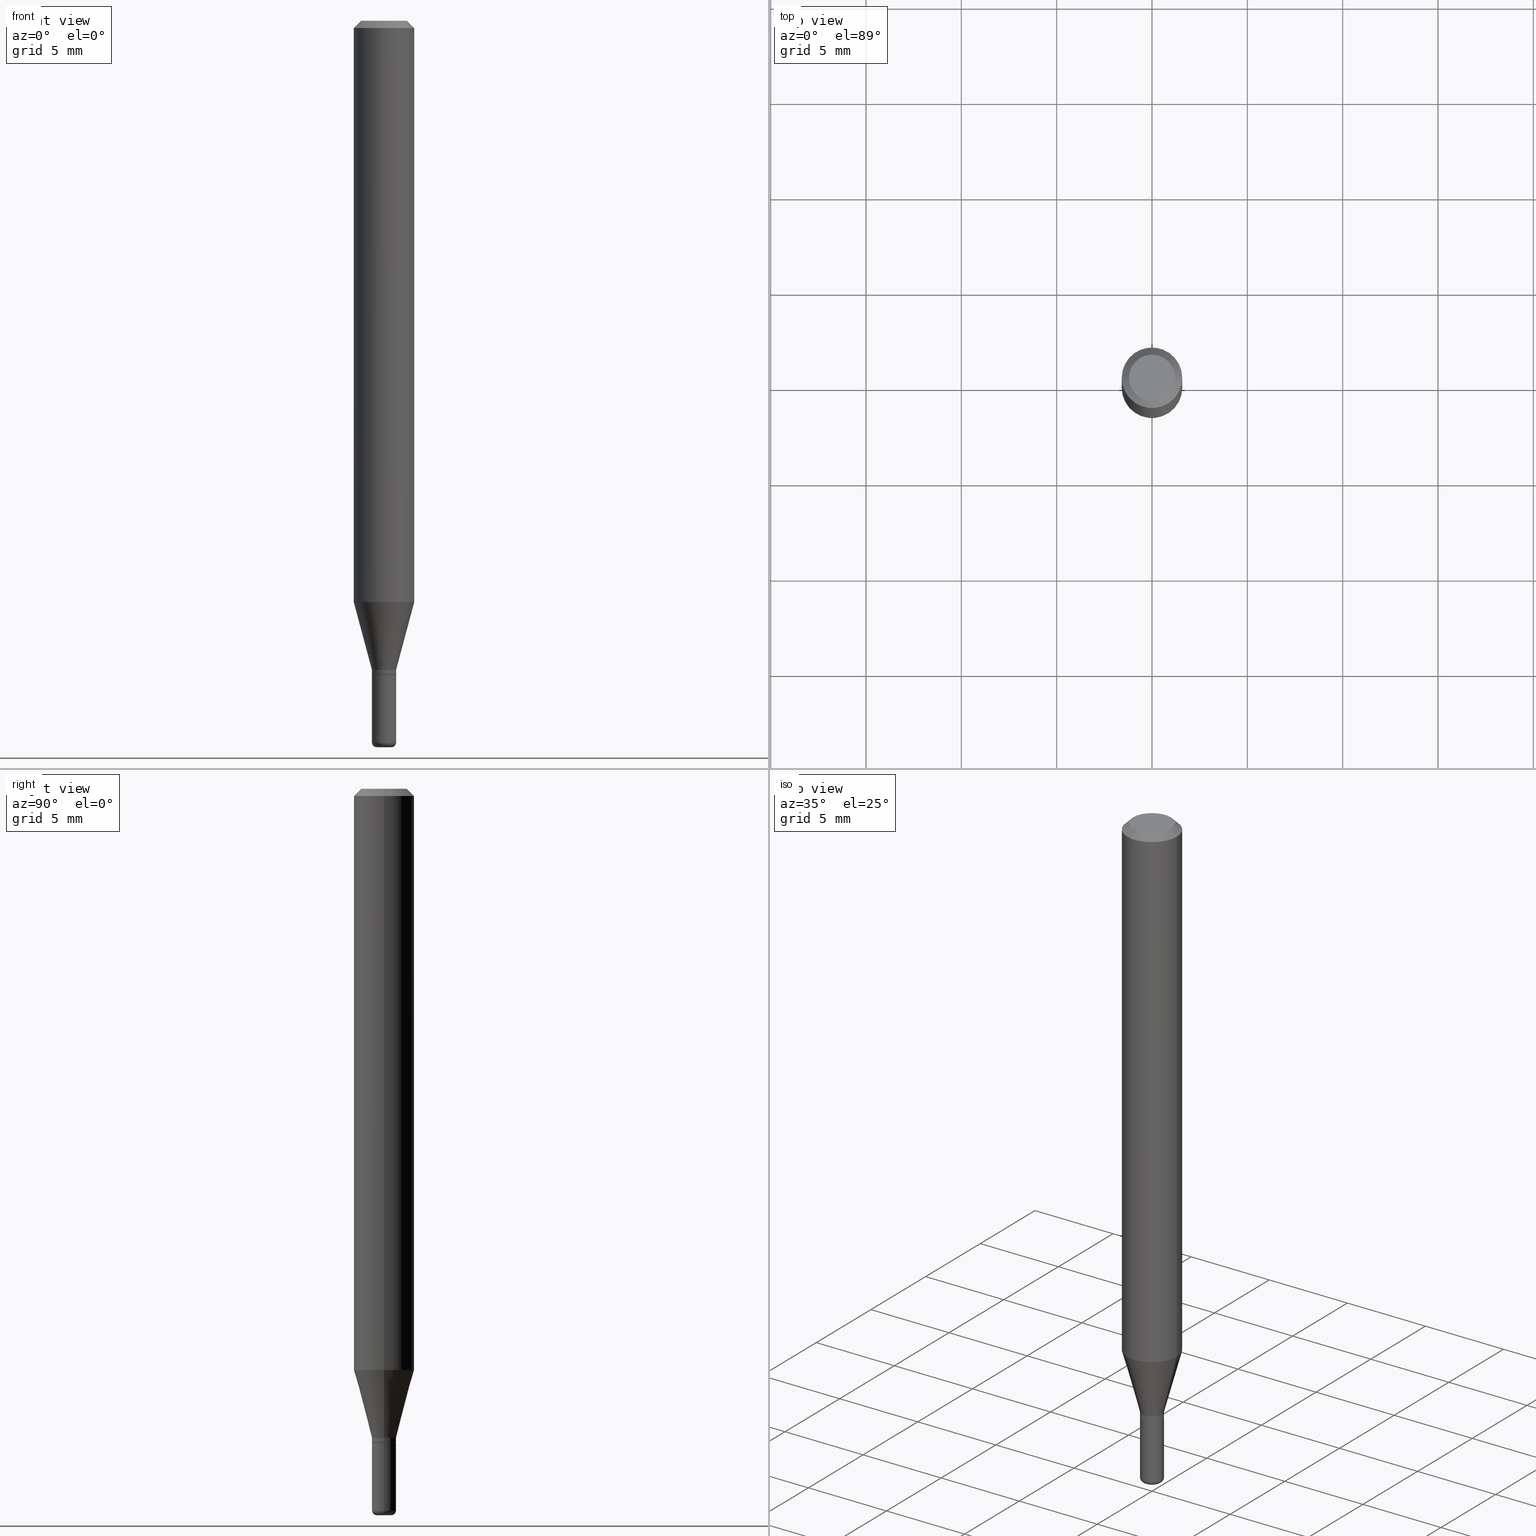
[diagram: canonical four-view strip — front | top / right | iso, engineering-drawing reading convention]
A machine part, canonical four-view strip (front | top / right | iso — engineering-drawing reading convention). The complete STEP part file that produces these views, byte-faithful:
ISO-10303-21;
HEADER;
FILE_DESCRIPTION (( 'STEP AP203' ),
    '1' );
FILE_NAME ('08665.STEP',
    '2024-02-29T20:15:08',
    ( '' ),
    ( '' ),
    'SwSTEP 2.0',
    'SolidWorks 2023',
    '' );
FILE_SCHEMA (( 'CONFIG_CONTROL_DESIGN' ));
ENDSEC;

DATA;
#1 = CALENDAR_DATE ( 2024, 29, 2 ) ;
#2 = ORIENTED_EDGE ( 'NONE', *, *, #65, .F. ) ;
#3 = EDGE_LOOP ( 'NONE', ( #370, #242, #313, #201 ) ) ;
#4 = APPLICATION_CONTEXT ( 'configuration controlled 3d designs of mechanical parts and assemblies' ) ;
#5 = AXIS2_PLACEMENT_3D ( 'NONE', #376, #502, #185 ) ;
#6 = ORGANIZATION ( 'UNSPECIFIED', 'UNSPECIFIED', '' ) ;
#7 = CONICAL_SURFACE ( 'NONE', #472, 0.02499999999999996322, 0.2617993877991492968 ) ;
#8 = EDGE_CURVE ( 'NONE', #393, #438, #296, .T. ) ;
#9 = VERTEX_POINT ( 'NONE', #403 ) ;
#10 = DIRECTION ( 'NONE',  ( 1.000000000000000000, -6.982962677686265922E-15, 0.000000000000000000 ) ) ;
#11 = DIRECTION ( 'NONE',  ( -2.445468806185136597E-29, 3.491481338843145583E-15, 1.000000000000000000 ) ) ;
#12 = ORIENTED_EDGE ( 'NONE', *, *, #480, .T. ) ;
#13 = CARTESIAN_POINT ( 'NONE',  ( 0.01500000000000000465, -5.341966448430012335E-15, -1.500000000000000222 ) ) ;
#14 = ORIENTED_EDGE ( 'NONE', *, *, #129, .T. ) ;
#15 = ADVANCED_FACE ( 'NONE', ( #446 ), #219, .T. ) ;
#16 = CARTESIAN_POINT ( 'NONE',  ( 3.582686580359766038E-29, -5.359686688179453325E-15, -1.500000000000000222 ) ) ;
#17 = ORIENTED_EDGE ( 'NONE', *, *, #295, .T. ) ;
#18 = CARTESIAN_POINT ( 'NONE',  ( -0.06250000000000000000, 3.840629472727455270E-16, -0.01499999999999970281 ) ) ;
#19 = EDGE_LOOP ( 'NONE', ( #249, #366 ) ) ;
#20 = CARTESIAN_POINT ( 'NONE',  ( 3.300160153946842277E-29, -4.711754066768825092E-15, -1.349500000000000144 ) ) ;
#21 = AXIS2_PLACEMENT_3D ( 'NONE', #420, #71, #230 ) ;
#22 = DIRECTION ( 'NONE',  ( 1.000000000000000000, -6.982962677686265922E-15, 4.876176775795935793E-29 ) ) ;
#23 =( GEOMETRIC_REPRESENTATION_CONTEXT ( 3 ) GLOBAL_UNCERTAINTY_ASSIGNED_CONTEXT ( ( #264 ) ) GLOBAL_UNIT_ASSIGNED_CONTEXT ( ( #30, #192, #422 ) ) REPRESENTATION_CONTEXT ( 'NONE', 'WORKASPACE' ) );
#24 = ADVANCED_FACE ( 'NONE', ( #490 ), #161, .T. ) ;
#25 = DIRECTION ( 'NONE',  ( 1.000000000000000000, -6.982962677686269866E-15, 4.883557194083113462E-29 ) ) ;
#26 = DIRECTION ( 'NONE',  ( 2.438088387897960049E-29, -3.491481338843145188E-15, -1.000000000000000000 ) ) ;
#27 = LENGTH_MEASURE_WITH_UNIT ( LENGTH_MEASURE( 0.02539999999999999897 ), #379 );
#28 = CARTESIAN_POINT ( 'NONE',  ( -0.06250000000000000000, 4.440892098500626162E-16, -3.074334431409316114E-30 ) ) ;
#29 = EDGE_LOOP ( 'NONE', ( #199, #96, #405, #46 ) ) ;
#30 =( CONVERSION_BASED_UNIT ( 'INCH', #27 ) LENGTH_UNIT ( ) NAMED_UNIT ( #190 ) );
#31 = CARTESIAN_POINT ( 'NONE',  ( 3.668203209277704895E-29, -5.237222008264718177E-15, -1.500000000000000222 ) ) ;
#32 = AXIS2_PLACEMENT_3D ( 'NONE', #445, #499, #252 ) ;
#33 = CARTESIAN_POINT ( 'NONE',  ( 0.02499999999999996322, -4.853159060991972403E-15, -1.340000000000000080 ) ) ;
#34 = PERSON_AND_ORGANIZATION ( #459, #6 ) ;
#35 = CARTESIAN_POINT ( 'NONE',  ( 0.02499999999999996322, -4.853159060991972403E-15, -1.340000000000000080 ) ) ;
#36 = APPROVAL_STATUS ( 'not_yet_approved' ) ;
#37 = VERTEX_POINT ( 'NONE', #332 ) ;
#38 = ORIENTED_EDGE ( 'NONE', *, *, #205, .T. ) ;
#39 = PERSON_AND_ORGANIZATION ( #459, #6 ) ;
#40 = AXIS2_PLACEMENT_3D ( 'NONE', #261, #74, #414 ) ;
#41 = CONICAL_SURFACE ( 'NONE', #103, 0.02449999999999996972, 0.7853981633975507526 ) ;
#42 = ORIENTED_EDGE ( 'NONE', *, *, #421, .T. ) ;
#43 = CARTESIAN_POINT ( 'NONE',  ( 0.000000000000000000, 0.000000000000000000, 0.000000000000000000 ) ) ;
#44 = EDGE_LOOP ( 'NONE', ( #153, #359, #42, #513 ) ) ;
#45 = EDGE_CURVE ( 'NONE', #243, #91, #486, .T. ) ;
#46 = ORIENTED_EDGE ( 'NONE', *, *, #391, .F. ) ;
#47 = CIRCLE ( 'NONE', #287, 0.06250000000000000000 ) ;
#48 = CLOSED_SHELL ( 'NONE', ( #372, #299, #220, #308, #427, #402 ) ) ;
#49 = COORDINATED_UNIVERSAL_TIME_OFFSET ( 5, 0, .BEHIND. ) ;
#50 = EDGE_LOOP ( 'NONE', ( #163, #128 ) ) ;
#51 = APPLICATION_CONTEXT ( 'configuration controlled 3d designs of mechanical parts and assemblies' ) ;
#52 = CARTESIAN_POINT ( 'NONE',  ( 0.02499999999999996669, -1.745740669421564459E-16, 1.219044193948982372E-30 ) ) ;
#53 = CARTESIAN_POINT ( 'NONE',  ( 0.02499999999999997363, -4.886328133710982549E-15, -1.349500000000000144 ) ) ;
#54 = DIRECTION ( 'NONE',  ( 1.000000000000000000, -6.982962677686265922E-15, 4.876176775795935793E-29 ) ) ;
#55 = DIRECTION ( 'NONE',  ( 1.000000000000000000, -6.982962677686267499E-15, 4.876176775795935793E-29 ) ) ;
#56 = ADVANCED_FACE ( 'NONE', ( #324 ), #506, .T. ) ;
#57 = LINE ( 'NONE', #52, #236 ) ;
#58 = CIRCLE ( 'NONE', #342, 0.02500000000000000139 ) ;
#59 = CC_DESIGN_APPROVAL ( #83, ( #172 ) ) ;
#60 = VERTEX_POINT ( 'NONE', #53 ) ;
#61 = AXIS2_PLACEMENT_3D ( 'NONE', #244, #285, #55 ) ;
#62 = CARTESIAN_POINT ( 'NONE',  ( -0.02499999999999994588, -4.780267817217242146E-15, -1.490000000000000213 ) ) ;
#63 = VERTEX_POINT ( 'NONE', #293 ) ;
#64 = FACE_OUTER_BOUND ( 'NONE', #191, .T. ) ;
#65 = EDGE_CURVE ( 'NONE', #361, #352, #247, .T. ) ;
#66 = DIRECTION ( 'NONE',  ( -2.445468806185136877E-29, 3.491481338843145188E-15, 1.000000000000000000 ) ) ;
#67 = DIRECTION ( 'NONE',  ( 1.000000000000000000, -6.982962677686282488E-15, 0.000000000000000000 ) ) ;
#68 = VECTOR ( 'NONE', #66, 39.37007874015748143 ) ;
#69 = DIRECTION ( 'NONE',  ( -1.000000000000000000, 7.105427357600964782E-15, 0.000000000000000000 ) ) ;
#70 = DESIGN_CONTEXT ( 'detailed design', #4, 'design' ) ;
#71 = DIRECTION ( 'NONE',  ( -2.445468806185136597E-29, 3.491481338843145583E-15, 1.000000000000000000 ) ) ;
#72 = CC_DESIGN_DATE_AND_TIME_ASSIGNMENT ( #387, #196, ( #79 ) ) ;
#73 = DIRECTION ( 'NONE',  ( -2.445468806185136597E-29, 3.491481338843145583E-15, 1.000000000000000000 ) ) ;
#74 = DIRECTION ( 'NONE',  ( -2.445468806185136597E-29, 3.491481338843145583E-15, 1.000000000000000000 ) ) ;
#75 = EDGE_CURVE ( 'NONE', #100, #434, #104, .T. ) ;
#76 = FACE_OUTER_BOUND ( 'NONE', #175, .T. ) ;
#77 = COORDINATED_UNIVERSAL_TIME_OFFSET ( 5, 0, .BEHIND. ) ;
#78 = CIRCLE ( 'NONE', #102, 0.02499999999999997363 ) ;
#79 = SECURITY_CLASSIFICATION ( '', '', #238 ) ;
#80 = CIRCLE ( 'NONE', #382, 0.02499999999999997363 ) ;
#81 = DIRECTION ( 'NONE',  ( -2.445468806185136877E-29, 3.491481338843145188E-15, 1.000000000000000000 ) ) ;
#82 = VERTEX_POINT ( 'NONE', #411 ) ;
#83 = APPROVAL ( #125, 'UNSPECIFIED' ) ;
#84 = APPROVAL_STATUS ( 'not_yet_approved' ) ;
#85 = ORIENTED_EDGE ( 'NONE', *, *, #386, .T. ) ;
#86 = AXIS2_PLACEMENT_3D ( 'NONE', #493, #174, #10 ) ;
#87 = APPROVAL_DATE_TIME ( #271, #83 ) ;
#88 = EDGE_LOOP ( 'NONE', ( #277, #14, #320, #131 ) ) ;
#89 = EDGE_LOOP ( 'NONE', ( #204, #448, #121, #289 ) ) ;
#90 = EDGE_CURVE ( 'NONE', #243, #200, #436, .T. ) ;
#91 = VERTEX_POINT ( 'NONE', #500 ) ;
#92 = AXIS2_PLACEMENT_3D ( 'NONE', #148, #494, #173 ) ;
#93 = AXIS2_PLACEMENT_3D ( 'NONE', #43, #508, #469 ) ;
#94 = DIRECTION ( 'NONE',  ( 1.000000000000000000, -6.982962677686269866E-15, 0.000000000000000000 ) ) ;
#95 = ADVANCED_FACE ( 'NONE', ( #109 ), #189, .F. ) ;
#96 = ORIENTED_EDGE ( 'NONE', *, *, #394, .T. ) ;
#97 = DIRECTION ( 'NONE',  ( 1.000000000000000000, -6.982962677686261977E-15, 0.000000000000000000 ) ) ;
#98 = CARTESIAN_POINT ( 'NONE',  ( -6.680649051745406845E-45, 9.538196290434862081E-31, 2.731847993664263218E-16 ) ) ;
#99 = DIRECTION ( 'NONE',  ( 1.000000000000000000, -6.982962677686265133E-15, 0.000000000000000000 ) ) ;
#100 = VERTEX_POINT ( 'NONE', #231 ) ;
#101 = DIRECTION ( 'NONE',  ( -2.445468806185136597E-29, 3.491481338843145583E-15, 1.000000000000000000 ) ) ;
#102 = AXIS2_PLACEMENT_3D ( 'NONE', #20, #260, #97 ) ;
#103 = AXIS2_PLACEMENT_3D ( 'NONE', #426, #418, #232 ) ;
#104 = LINE ( 'NONE', #326, #144 ) ;
#105 = AXIS2_PLACEMENT_3D ( 'NONE', #194, #503, #69 ) ;
#106 = CARTESIAN_POINT ( 'NONE',  ( 0.000000000000000000, 0.000000000000000000, 0.000000000000000000 ) ) ;
#107 = DIRECTION ( 'NONE',  ( 1.000000000000000000, -6.982962677686274599E-15, 0.000000000000000000 ) ) ;
#108 = CYLINDRICAL_SURFACE ( 'NONE', #166, 0.02499999999999996669 ) ;
#109 = FACE_OUTER_BOUND ( 'NONE', #50, .T. ) ;
#110 = MANIFOLD_SOLID_BREP ( 'Body-Move/Copy2[1]', #48 ) ;
#111 = FACE_OUTER_BOUND ( 'NONE', #476, .T. ) ;
#112 = CC_DESIGN_SECURITY_CLASSIFICATION ( #79, ( #114 ) ) ;
#113 = DIRECTION ( 'NONE',  ( -0.2588190451025205729, 5.211531920934544731E-15, 0.9659258262890682012 ) ) ;
#114 = PRODUCT_DEFINITION_FORMATION_WITH_SPECIFIED_SOURCE ( 'ANY', '', #465, .NOT_KNOWN. ) ;
#115 = DIRECTION ( 'NONE',  ( -2.445468806185136597E-29, 3.491481338843145583E-15, 1.000000000000000000 ) ) ;
#116 = EDGE_CURVE ( 'NONE', #9, #100, #400, .T. ) ;
#117 = DIRECTION ( 'NONE',  ( 1.000000000000000000, -6.982962677686254878E-15, 0.000000000000000000 ) ) ;
#118 = APPROVAL_ROLE ( '' ) ;
#119 = EDGE_CURVE ( 'NONE', #352, #434, #504, .T. ) ;
#120 = DIRECTION ( 'NONE',  ( 1.000000000000000000, -6.982962677686267499E-15, 4.876176775795935793E-29 ) ) ;
#121 = ORIENTED_EDGE ( 'NONE', *, *, #391, .T. ) ;
#122 = ADVANCED_FACE ( 'NONE', ( #298 ), #416, .T. ) ;
#123 = ORIENTED_EDGE ( 'NONE', *, *, #497, .T. ) ;
#124 = ORIENTED_EDGE ( 'NONE', *, *, #203, .T. ) ;
#125 = APPROVAL_STATUS ( 'not_yet_approved' ) ;
#126 = CIRCLE ( 'NONE', #478, 0.02499999999999994588 ) ;
#127 = ORIENTED_EDGE ( 'NONE', *, *, #412, .T. ) ;
#128 = ORIENTED_EDGE ( 'NONE', *, *, #477, .T. ) ;
#129 = EDGE_CURVE ( 'NONE', #350, #82, #339, .T. ) ;
#130 = APPROVAL_DATE_TIME ( #397, #211 ) ;
#131 = ORIENTED_EDGE ( 'NONE', *, *, #480, .F. ) ;
#132 = CC_DESIGN_PERSON_AND_ORGANIZATION_ASSIGNMENT ( #34, #389, ( #114 ) ) ;
#133 = CIRCLE ( 'NONE', #428, 0.02500000000000000139 ) ;
#134 = ADVANCED_FACE ( 'NONE', ( #344 ), #7, .T. ) ;
#135 = DIRECTION ( 'NONE',  ( 1.000000000000000000, -6.982962677686265922E-15, 4.876176775795935232E-29 ) ) ;
#136 = DIRECTION ( 'NONE',  ( 2.445468806185136597E-29, -3.491481338843145583E-15, -1.000000000000000000 ) ) ;
#137 = LINE ( 'NONE', #302, #335 ) ;
#138 = EDGE_LOOP ( 'NONE', ( #213, #124, #334, #316 ) ) ;
#139 = DIRECTION ( 'NONE',  ( -2.445468806185136597E-29, 3.491481338843145583E-15, 1.000000000000000000 ) ) ;
#140 = DIRECTION ( 'NONE',  ( -2.445468806185136597E-29, 3.491481338843145583E-15, 1.000000000000000000 ) ) ;
#141 = DIRECTION ( 'NONE',  ( -2.445468806185136877E-29, 3.491481338843145188E-15, 1.000000000000000000 ) ) ;
#142 = AXIS2_PLACEMENT_3D ( 'NONE', #415, #73, #67 ) ;
#143 = CIRCLE ( 'NONE', #398, 0.06250000000000000000 ) ;
#144 = VECTOR ( 'NONE', #259, 39.37007874015748143 ) ;
#145 = FACE_OUTER_BOUND ( 'NONE', #437, .T. ) ;
#146 = TOROIDAL_SURFACE ( 'NONE', #351, 0.01500000000000000291, 0.009999999999999946432 ) ;
#147 = EDGE_CURVE ( 'NONE', #170, #356, #149, .T. ) ;
#148 = CARTESIAN_POINT ( 'NONE',  ( 1.745740669421896767E-16, 0.02499999999999528988, -1.350000000000000089 ) ) ;
#149 = LINE ( 'NONE', #507, #245 ) ;
#150 = DIRECTION ( 'NONE',  ( 0.2588190451025205729, 1.565188264969627490E-15, 0.9659258262890682012 ) ) ;
#151 = DIRECTION ( 'NONE',  ( -2.445468806185136877E-29, 3.491481338843145188E-15, 1.000000000000000000 ) ) ;
#152 = CARTESIAN_POINT ( 'NONE',  ( -0.02499999999999997363, 1.776356839400248591E-16, -1.229733772563725079E-30 ) ) ;
#153 = ORIENTED_EDGE ( 'NONE', *, *, #147, .F. ) ;
#154 = CARTESIAN_POINT ( 'NONE',  ( -0.02449999999999996972, -4.536767610002911089E-15, -1.350000000000000089 ) ) ;
#155 = CALENDAR_DATE ( 2024, 29, 2 ) ;
#156 = DIRECTION ( 'NONE',  ( -2.445468806185136597E-29, 3.491481338843145583E-15, 1.000000000000000000 ) ) ;
#157 = EDGE_CURVE ( 'NONE', #91, #243, #407, .T. ) ;
#158 = DATE_TIME_ROLE ( 'creation_date' ) ;
#159 = ORIENTED_EDGE ( 'NONE', *, *, #205, .F. ) ;
#160 = ORIENTED_EDGE ( 'NONE', *, *, #119, .T. ) ;
#161 = CONICAL_SURFACE ( 'NONE', #409, 0.06250000000000000000, 0.7853981633974488341 ) ;
#162 = APPLICATION_PROTOCOL_DEFINITION ( 'international standard', 'config_control_design', 1994, #51 ) ;
#163 = ORIENTED_EDGE ( 'NONE', *, *, #65, .T. ) ;
#164 = ORIENTED_EDGE ( 'NONE', *, *, #319, .T. ) ;
#165 = EDGE_CURVE ( 'NONE', #91, #350, #321, .T. ) ;
#166 = AXIS2_PLACEMENT_3D ( 'NONE', #309, #460, #120 ) ;
#167 = EDGE_LOOP ( 'NONE', ( #217, #481 ) ) ;
#168 = APPROVAL_PERSON_ORGANIZATION ( #474, #83, #239 ) ;
#169 = AXIS2_PLACEMENT_3D ( 'NONE', #406, #101, #447 ) ;
#170 = VERTEX_POINT ( 'NONE', #154 ) ;
#171 = CARTESIAN_POINT ( 'NONE',  ( 3.668203209277632395E-31, -5.237222008264614861E-17, -0.01499999999999970281 ) ) ;
#172 = PRODUCT_DEFINITION ( 'UNKNOWN', '', #114, #70 ) ;
#173 = DIRECTION ( 'NONE',  ( -1.000000000000000000, 6.982962677686265922E-15, -4.876176775795935793E-29 ) ) ;
#174 = DIRECTION ( 'NONE',  ( -2.445468806185136597E-29, 3.491481338843145583E-15, 1.000000000000000000 ) ) ;
#175 = EDGE_LOOP ( 'NONE', ( #329, #160, #127, #207 ) ) ;
#176 = DIRECTION ( 'NONE',  ( 1.000000000000000000, -6.982962677686269866E-15, 0.000000000000000000 ) ) ;
#177 = ORIENTED_EDGE ( 'NONE', *, *, #323, .F. ) ;
#178 = CARTESIAN_POINT ( 'NONE',  ( 0.04750000000000000749, -4.035134999187568762E-16, 2.731847993664288856E-16 ) ) ;
#179 = ORIENTED_EDGE ( 'NONE', *, *, #212, .F. ) ;
#180 = PLANE ( 'NONE',  #92 ) ;
#181 = AXIS2_PLACEMENT_3D ( 'NONE', #31, #115, #496 ) ;
#182 = AXIS2_PLACEMENT_3D ( 'NONE', #341, #378, #224 ) ;
#183 = CARTESIAN_POINT ( 'NONE',  ( 0.06250000000000000000, -4.811533449433669144E-16, -0.01499999999999970281 ) ) ;
#184 = ADVANCED_FACE ( 'NONE', ( #145 ), #456, .F. ) ;
#185 = DIRECTION ( 'NONE',  ( -1.000000000000000000, 6.982962677686266711E-15, 0.000000000000000000 ) ) ;
#186 = DIRECTION ( 'NONE',  ( -1.000000000000000000, 6.982962677686265922E-15, -4.876176775795935793E-29 ) ) ;
#187 = EDGE_CURVE ( 'NONE', #60, #356, #80, .T. ) ;
#188 = CARTESIAN_POINT ( 'NONE',  ( 2.934680181550293043E-29, -4.189945528415768698E-15, -1.200048094716167135 ) ) ;
#189 = PLANE ( 'NONE',  #274 ) ;
#190 = DIMENSIONAL_EXPONENTS ( 1.000000000000000000, 0.000000000000000000, 0.000000000000000000, 0.000000000000000000, 0.000000000000000000, 0.000000000000000000, 0.000000000000000000 ) ;
#191 = EDGE_LOOP ( 'NONE', ( #159, #275, #123, #291 ) ) ;
#192 =( NAMED_UNIT ( * ) PLANE_ANGLE_UNIT ( ) SI_UNIT ( $, .RADIAN. ) );
#193 = VECTOR ( 'NONE', #113, 39.37007874015748854 ) ;
#194 = CARTESIAN_POINT ( 'NONE',  ( -0.01500000000000000291, -5.095725784512272983E-15, -1.490000000000000213 ) ) ;
#195 = CARTESIAN_POINT ( 'NONE',  ( 3.301382888349935078E-29, -4.713499807438246596E-15, -1.350000000000000089 ) ) ;
#196 = DATE_TIME_ROLE ( 'classification_date' ) ;
#197 = FACE_OUTER_BOUND ( 'NONE', #3, .T. ) ;
#198 = EDGE_LOOP ( 'NONE', ( #399, #395, #177, #432 ) ) ;
#199 = ORIENTED_EDGE ( 'NONE', *, *, #187, .T. ) ;
#200 = VERTEX_POINT ( 'NONE', #423 ) ;
#201 = ORIENTED_EDGE ( 'NONE', *, *, #319, .F. ) ;
#202 = ADVANCED_BREP_SHAPE_REPRESENTATION ( '08665', ( #110, #439, #93 ), #23 ) ;
#203 = EDGE_CURVE ( 'NONE', #9, #37, #458, .T. ) ;
#204 = ORIENTED_EDGE ( 'NONE', *, *, #394, .F. ) ;
#205 = EDGE_CURVE ( 'NONE', #393, #9, #303, .T. ) ;
#206 = CONICAL_SURFACE ( 'NONE', #258, 0.02499999999999996322, 0.2617993877991492968 ) ;
#207 = ORIENTED_EDGE ( 'NONE', *, *, #295, .F. ) ;
#208 = LOCAL_TIME ( 15, 15, 8.000000000000000000, #49 ) ;
#209 = AXIS2_PLACEMENT_3D ( 'NONE', #485, #251, #107 ) ;
#210 = AXIS2_PLACEMENT_3D ( 'NONE', #457, #156, #384 ) ;
#211 = APPROVAL ( #36, 'UNSPECIFIED' ) ;
#212 = EDGE_CURVE ( 'NONE', #37, #434, #498, .T. ) ;
#213 = ORIENTED_EDGE ( 'NONE', *, *, #516, .T. ) ;
#214 = FACE_OUTER_BOUND ( 'NONE', #167, .T. ) ;
#215 = DIRECTION ( 'NONE',  ( 1.000000000000000000, -6.982962677686282488E-15, 0.000000000000000000 ) ) ;
#216 = CARTESIAN_POINT ( 'NONE',  ( 3.668203209277632395E-31, -5.237222008264614861E-17, -0.01499999999999970281 ) ) ;
#217 = ORIENTED_EDGE ( 'NONE', *, *, #440, .T. ) ;
#218 = DIRECTION ( 'NONE',  ( -2.445468806185136597E-29, 3.491481338843145583E-15, 1.000000000000000000 ) ) ;
#219 = CYLINDRICAL_SURFACE ( 'NONE', #61, 0.02499999999999996669 ) ;
#220 = ADVANCED_FACE ( 'NONE', ( #214 ), #180, .F. ) ;
#221 = CARTESIAN_POINT ( 'NONE',  ( -0.02499999999999996322, -4.123402814337748307E-15, -1.340000000000000080 ) ) ;
#222 = DIRECTION ( 'NONE',  ( 1.000000000000000000, -6.982962677686265133E-15, 0.000000000000000000 ) ) ;
#223 = FACE_OUTER_BOUND ( 'NONE', #88, .T. ) ;
#224 = DIRECTION ( 'NONE',  ( 1.000000000000000000, -6.982962677686262766E-15, 0.000000000000000000 ) ) ;
#225 = LINE ( 'NONE', #424, #255 ) ;
#226 = AXIS2_PLACEMENT_3D ( 'NONE', #369, #491, #257 ) ;
#227 = LOCAL_TIME ( 15, 15, 8.000000000000000000, #77 ) ;
#228 = DIRECTION ( 'NONE',  ( -2.445468806185136597E-29, 3.491481338843145583E-15, 1.000000000000000000 ) ) ;
#229 = DIRECTION ( 'NONE',  ( 1.000000000000000000, -6.982962677686254878E-15, 0.000000000000000000 ) ) ;
#230 = DIRECTION ( 'NONE',  ( 1.000000000000000000, -6.982962677686266711E-15, 0.000000000000000000 ) ) ;
#231 = CARTESIAN_POINT ( 'NONE',  ( 0.06250000000000000000, -4.626380695771160368E-15, -1.200048094716167135 ) ) ;
#232 = DIRECTION ( 'NONE',  ( 1.000000000000000000, -6.982962677686282488E-15, 0.000000000000000000 ) ) ;
#233 = CONICAL_SURFACE ( 'NONE', #5, 0.06250000000000000000, 0.7853981633974488341 ) ;
#234 = DATE_AND_TIME ( #429, #227 ) ;
#235 = CLOSED_SHELL ( 'NONE', ( #488, #56, #492, #122, #134, #254, #461, #24, #95, #184, #518, #15 ) ) ;
#236 = VECTOR ( 'NONE', #410, 39.37007874015748143 ) ;
#237 = DIRECTION ( 'NONE',  ( -2.445468806185136597E-29, 3.491481338843145583E-15, 1.000000000000000000 ) ) ;
#238 = SECURITY_CLASSIFICATION_LEVEL ( 'unclassified' ) ;
#239 = APPROVAL_ROLE ( '' ) ;
#240 = APPLICATION_PROTOCOL_DEFINITION ( 'international standard', 'config_control_design', 1994, #4 ) ;
#241 = ORIENTED_EDGE ( 'NONE', *, *, #203, .F. ) ;
#242 = ORIENTED_EDGE ( 'NONE', *, *, #157, .T. ) ;
#243 = VERTEX_POINT ( 'NONE', #13 ) ;
#244 = CARTESIAN_POINT ( 'NONE',  ( 0.000000000000000000, 0.000000000000000000, 0.000000000000000000 ) ) ;
#245 = VECTOR ( 'NONE', #377, 39.37007874015748143 ) ;
#246 = LOCAL_TIME ( 15, 15, 8.000000000000000000, #433 ) ;
#247 = CIRCLE ( 'NONE', #358, 0.04750000000000000749 ) ;
#248 = CARTESIAN_POINT ( 'NONE',  ( -0.02499999999999997363, -4.534118382828799888E-15, -1.349500000000000144 ) ) ;
#249 = ORIENTED_EDGE ( 'NONE', *, *, #45, .F. ) ;
#250 = CARTESIAN_POINT ( 'NONE',  ( 3.276928200288083533E-29, -4.678584994049815735E-15, -1.340000000000000080 ) ) ;
#251 = DIRECTION ( 'NONE',  ( -6.982962677686266711E-15, -1.000000000000000000, 3.491481338843145583E-15 ) ) ;
#252 = DIRECTION ( 'NONE',  ( 1.000000000000000000, -6.982962677686265922E-15, 4.876176775795935232E-29 ) ) ;
#253 = DIRECTION ( 'NONE',  ( -2.445468806185136597E-29, 3.491481338843145583E-15, 1.000000000000000000 ) ) ;
#254 = ADVANCED_FACE ( 'NONE', ( #64 ), #206, .T. ) ;
#255 = VECTOR ( 'NONE', #81, 39.37007874015748143 ) ;
#256 = AXIS2_PLACEMENT_3D ( 'NONE', #482, #140, #215 ) ;
#257 = DIRECTION ( 'NONE',  ( 1.000000000000000000, -6.982962677686282488E-15, 0.000000000000000000 ) ) ;
#258 = AXIS2_PLACEMENT_3D ( 'NONE', #288, #336, #99 ) ;
#259 = DIRECTION ( 'NONE',  ( -2.445468806185136877E-29, 3.491481338843145188E-15, 1.000000000000000000 ) ) ;
#260 = DIRECTION ( 'NONE',  ( -2.445468806185136597E-29, 3.491481338843145583E-15, 1.000000000000000000 ) ) ;
#261 = CARTESIAN_POINT ( 'NONE',  ( 0.000000000000000000, 0.000000000000000000, 0.000000000000000000 ) ) ;
#262 = DIRECTION ( 'NONE',  ( -2.445468806185136597E-29, 3.491481338843145583E-15, 1.000000000000000000 ) ) ;
#263 = CARTESIAN_POINT ( 'NONE',  ( 3.316907271900976589E-16, 0.04750000000000000749, -2.925296391183627249E-17 ) ) ;
#264 = UNCERTAINTY_MEASURE_WITH_UNIT (LENGTH_MEASURE( 1.000000000000000082E-05 ), #30, 'distance_accuracy_value', 'NONE');
#265 = DIRECTION ( 'NONE',  ( -2.445468806185136597E-29, 3.491481338843145583E-15, 1.000000000000000000 ) ) ;
#266 = CIRCLE ( 'NONE', #226, 0.02449999999999996972 ) ;
#267 = CARTESIAN_POINT ( 'NONE',  ( 3.276928200288083533E-29, -4.678584994049815735E-15, -1.340000000000000080 ) ) ;
#268 = FACE_OUTER_BOUND ( 'NONE', #29, .T. ) ;
#269 = CARTESIAN_POINT ( 'NONE',  ( 3.301382888349935078E-29, -4.713499807438246596E-15, -1.350000000000000089 ) ) ;
#270 = DIRECTION ( 'NONE',  ( -2.445468806185136597E-29, 3.491481338843145583E-15, 1.000000000000000000 ) ) ;
#271 = DATE_AND_TIME ( #1, #305 ) ;
#272 = LINE ( 'NONE', #35, #451 ) ;
#273 = CIRCLE ( 'NONE', #210, 0.04750000000000000749 ) ;
#274 = AXIS2_PLACEMENT_3D ( 'NONE', #263, #26, #186 ) ;
#275 = ORIENTED_EDGE ( 'NONE', *, *, #8, .T. ) ;
#276 = PERSON_AND_ORGANIZATION_ROLE ( 'creator' ) ;
#277 = ORIENTED_EDGE ( 'NONE', *, *, #323, .T. ) ;
#278 = EDGE_LOOP ( 'NONE', ( #479, #164, #12, #419 ) ) ;
#279 = AXIS2_PLACEMENT_3D ( 'NONE', #468, #262, #300 ) ;
#280 = PERSON_AND_ORGANIZATION_ROLE ( 'design_owner' ) ;
#281 = CC_DESIGN_APPROVAL ( #346, ( #114 ) ) ;
#282 = ORIENTED_EDGE ( 'NONE', *, *, #187, .F. ) ;
#283 = PRODUCT_RELATED_PRODUCT_CATEGORY ( 'detail', '', ( #465 ) ) ;
#284 = ORIENTED_EDGE ( 'NONE', *, *, #497, .F. ) ;
#285 = DIRECTION ( 'NONE',  ( -2.445468806185136597E-29, 3.491481338843145583E-15, 1.000000000000000000 ) ) ;
#286 = CARTESIAN_POINT ( 'NONE',  ( 3.276928200288083533E-29, -4.678584994049815735E-15, -1.340000000000000080 ) ) ;
#287 = AXIS2_PLACEMENT_3D ( 'NONE', #216, #328, #487 ) ;
#288 = CARTESIAN_POINT ( 'NONE',  ( 3.276928200288083533E-29, -4.678584994049815735E-15, -1.340000000000000080 ) ) ;
#289 = ORIENTED_EDGE ( 'NONE', *, *, #8, .F. ) ;
#290 = PLANE ( 'NONE',  #360 ) ;
#291 = ORIENTED_EDGE ( 'NONE', *, *, #116, .F. ) ;
#292 = FACE_OUTER_BOUND ( 'NONE', #198, .T. ) ;
#293 = CARTESIAN_POINT ( 'NONE',  ( 0.02500000000000000139, -4.888073874380403263E-15, -1.350000000000000089 ) ) ;
#294 = CIRCLE ( 'NONE', #142, 0.02449999999999996972 ) ;
#295 = EDGE_CURVE ( 'NONE', #361, #37, #455, .T. ) ;
#296 = CIRCLE ( 'NONE', #312, 0.02499999999999996322 ) ;
#297 = CARTESIAN_POINT ( 'NONE',  ( 0.02449999999999996972, -4.884582393041560256E-15, -1.350000000000000089 ) ) ;
#298 = FACE_OUTER_BOUND ( 'NONE', #138, .T. ) ;
#299 = ADVANCED_FACE ( 'NONE', ( #223 ), #330, .T. ) ;
#300 = DIRECTION ( 'NONE',  ( 1.000000000000000000, -6.982962677686266711E-15, 4.876176775795935793E-29 ) ) ;
#301 = DIRECTION ( 'NONE',  ( 1.000000000000000000, -6.982962677686261977E-15, 0.000000000000000000 ) ) ;
#302 = CARTESIAN_POINT ( 'NONE',  ( 0.02449999999999996972, -4.884582393041560256E-15, -1.350000000000000089 ) ) ;
#303 = LINE ( 'NONE', #462, #193 ) ;
#304 = CARTESIAN_POINT ( 'NONE',  ( 3.301382888349935078E-29, -4.713499807438246596E-15, -1.350000000000000089 ) ) ;
#305 = LOCAL_TIME ( 15, 15, 8.000000000000000000, #435 ) ;
#306 = DIRECTION ( 'NONE',  ( 0.7071067811865479058, -7.319954787623257623E-15, -0.7071067811865471286 ) ) ;
#307 = PERSON_AND_ORGANIZATION ( #459, #6 ) ;
#308 = ADVANCED_FACE ( 'NONE', ( #362 ), #449, .T. ) ;
#309 = CARTESIAN_POINT ( 'NONE',  ( 0.000000000000000000, 0.000000000000000000, 0.000000000000000000 ) ) ;
#310 = AXIS2_PLACEMENT_3D ( 'NONE', #371, #11, #176 ) ;
#311 = COORDINATED_UNIVERSAL_TIME_OFFSET ( 5, 0, .BEHIND. ) ;
#312 = AXIS2_PLACEMENT_3D ( 'NONE', #286, #253, #222 ) ;
#313 = ORIENTED_EDGE ( 'NONE', *, *, #90, .T. ) ;
#314 = CC_DESIGN_DATE_AND_TIME_ASSIGNMENT ( #475, #158, ( #172 ) ) ;
#315 = MECHANICAL_CONTEXT ( 'NONE', #51, 'mechanical' ) ;
#316 = ORIENTED_EDGE ( 'NONE', *, *, #75, .F. ) ;
#317 = APPROVAL_DATE_TIME ( #234, #346 ) ;
#318 = ORIENTED_EDGE ( 'NONE', *, *, #75, .T. ) ;
#319 = EDGE_CURVE ( 'NONE', #350, #200, #126, .T. ) ;
#320 = ORIENTED_EDGE ( 'NONE', *, *, #440, .F. ) ;
#321 = CIRCLE ( 'NONE', #105, 0.009999999999999944697 ) ;
#322 = ORIENTED_EDGE ( 'NONE', *, *, #116, .T. ) ;
#323 = EDGE_CURVE ( 'NONE', #200, #350, #442, .T. ) ;
#324 = FACE_OUTER_BOUND ( 'NONE', #505, .T. ) ;
#325 = CARTESIAN_POINT ( 'NONE',  ( -0.02499999999999996669, 1.776356839400248098E-16, -1.229733772563724904E-30 ) ) ;
#326 = CARTESIAN_POINT ( 'NONE',  ( 0.06250000000000000000, -4.364351673553916694E-16, 3.047610484872459871E-30 ) ) ;
#327 = LOCAL_TIME ( 15, 15, 8.000000000000000000, #311 ) ;
#328 = DIRECTION ( 'NONE',  ( -2.445468806185136597E-29, 3.491481338843145583E-15, 1.000000000000000000 ) ) ;
#329 = ORIENTED_EDGE ( 'NONE', *, *, #477, .F. ) ;
#330 = CYLINDRICAL_SURFACE ( 'NONE', #32, 0.02499999999999997363 ) ;
#331 = ORIENTED_EDGE ( 'NONE', *, *, #510, .F. ) ;
#332 = CARTESIAN_POINT ( 'NONE',  ( -0.06250000000000000000, -1.677069664399144681E-15, -0.01499999999999970281 ) ) ;
#333 = LINE ( 'NONE', #325, #484 ) ;
#334 = ORIENTED_EDGE ( 'NONE', *, *, #412, .F. ) ;
#335 = VECTOR ( 'NONE', #466, 39.37007874015748143 ) ;
#336 = DIRECTION ( 'NONE',  ( -2.445468806185136597E-29, 3.491481338843145583E-15, 1.000000000000000000 ) ) ;
#337 = CARTESIAN_POINT ( 'NONE',  ( 3.300160153946842277E-29, -4.711754066768825092E-15, -1.349500000000000144 ) ) ;
#338 = CYLINDRICAL_SURFACE ( 'NONE', #279, 0.06250000000000000000 ) ;
#339 = LINE ( 'NONE', #152, #68 ) ;
#340 = CC_DESIGN_PERSON_AND_ORGANIZATION_ASSIGNMENT ( #383, #276, ( #114 ) ) ;
#341 = CARTESIAN_POINT ( 'NONE',  ( 2.934680181550293043E-29, -4.189945528415768698E-15, -1.200048094716167135 ) ) ;
#342 = AXIS2_PLACEMENT_3D ( 'NONE', #195, #237, #229 ) ;
#343 = CARTESIAN_POINT ( 'NONE',  ( 3.643748521215853910E-29, -5.202307194876288105E-15, -1.490000000000000213 ) ) ;
#344 = FACE_OUTER_BOUND ( 'NONE', #514, .T. ) ;
#345 = FACE_OUTER_BOUND ( 'NONE', #44, .T. ) ;
#346 = APPROVAL ( #84, 'UNSPECIFIED' ) ;
#347 = PERSON_AND_ORGANIZATION ( #459, #6 ) ;
#348 = DIRECTION ( 'NONE',  ( -2.445468806185136597E-29, 3.491481338843145583E-15, 1.000000000000000000 ) ) ;
#349 = CC_DESIGN_PERSON_AND_ORGANIZATION_ASSIGNMENT ( #307, #280, ( #465 ) ) ;
#350 = VERTEX_POINT ( 'NONE', #62 ) ;
#351 = AXIS2_PLACEMENT_3D ( 'NONE', #343, #348, #25 ) ;
#352 = VERTEX_POINT ( 'NONE', #178 ) ;
#353 = ORIENTED_EDGE ( 'NONE', *, *, #147, .T. ) ;
#354 = SHAPE_DEFINITION_REPRESENTATION ( #380, #202 ) ;
#355 = VERTEX_POINT ( 'NONE', #297 ) ;
#356 = VERTEX_POINT ( 'NONE', #248 ) ;
#357 = VECTOR ( 'NONE', #151, 39.37007874015748143 ) ;
#358 = AXIS2_PLACEMENT_3D ( 'NONE', #98, #363, #452 ) ;
#359 = ORIENTED_EDGE ( 'NONE', *, *, #510, .T. ) ;
#360 = AXIS2_PLACEMENT_3D ( 'NONE', #16, #404, #54 ) ;
#361 = VERTEX_POINT ( 'NONE', #367 ) ;
#362 = FACE_OUTER_BOUND ( 'NONE', #278, .T. ) ;
#363 = DIRECTION ( 'NONE',  ( -2.445468806185136597E-29, 3.491481338843145583E-15, 1.000000000000000000 ) ) ;
#364 = EDGE_CURVE ( 'NONE', #355, #170, #266, .T. ) ;
#365 = CARTESIAN_POINT ( 'NONE',  ( 3.643748521215853910E-29, -5.202307194876288105E-15, -1.490000000000000213 ) ) ;
#366 = ORIENTED_EDGE ( 'NONE', *, *, #157, .F. ) ;
#367 = CARTESIAN_POINT ( 'NONE',  ( -0.04750000000000000749, 3.578768372314221353E-16, 2.731847993664239060E-16 ) ) ;
#368 = ORIENTED_EDGE ( 'NONE', *, *, #364, .F. ) ;
#369 = CARTESIAN_POINT ( 'NONE',  ( 3.301382888349935078E-29, -4.713499807438246596E-15, -1.350000000000000089 ) ) ;
#370 = ORIENTED_EDGE ( 'NONE', *, *, #165, .F. ) ;
#371 = CARTESIAN_POINT ( 'NONE',  ( 3.643748521215853910E-29, -5.202307194876288105E-15, -1.490000000000000213 ) ) ;
#372 = ADVANCED_FACE ( 'NONE', ( #292 ), #515, .T. ) ;
#373 = DIRECTION ( 'NONE',  ( -2.438088387897960049E-29, 3.491481338843145188E-15, 1.000000000000000000 ) ) ;
#374 = VECTOR ( 'NONE', #483, 39.37007874015748143 ) ;
#375 = APPROVAL_PERSON_ORGANIZATION ( #39, #211, #509 ) ;
#376 = CARTESIAN_POINT ( 'NONE',  ( 3.668203209277632395E-31, -5.237222008264614861E-17, -0.01499999999999970281 ) ) ;
#377 = DIRECTION ( 'NONE',  ( -0.7071067811866199593, 7.493145998870616062E-15, 0.7071067811864750752 ) ) ;
#378 = DIRECTION ( 'NONE',  ( -2.445468806185136597E-29, 3.491481338843145583E-15, 1.000000000000000000 ) ) ;
#379 =( LENGTH_UNIT ( ) NAMED_UNIT ( * ) SI_UNIT ( $, .METRE. ) );
#380 = PRODUCT_DEFINITION_SHAPE ( 'NONE', 'NONE',  #172 ) ;
#381 = DIRECTION ( 'NONE',  ( -2.445468806185136597E-29, 3.491481338843145583E-15, 1.000000000000000000 ) ) ;
#382 = AXIS2_PLACEMENT_3D ( 'NONE', #337, #228, #301 ) ;
#383 = PERSON_AND_ORGANIZATION ( #459, #6 ) ;
#384 = DIRECTION ( 'NONE',  ( 1.000000000000000000, -6.982962677686266711E-15, 4.852736867747365086E-29 ) ) ;
#385 = CC_DESIGN_PERSON_AND_ORGANIZATION_ASSIGNMENT ( #431, #467, ( #79 ) ) ;
#386 = EDGE_CURVE ( 'NONE', #438, #393, #454, .T. ) ;
#387 = DATE_AND_TIME ( #388, #327 ) ;
#388 = CALENDAR_DATE ( 2024, 29, 2 ) ;
#389 = PERSON_AND_ORGANIZATION_ROLE ( 'design_supplier' ) ;
#390 = ORIENTED_EDGE ( 'NONE', *, *, #364, .T. ) ;
#391 = EDGE_CURVE ( 'NONE', #60, #438, #57, .T. ) ;
#392 = PERSON_AND_ORGANIZATION ( #459, #6 ) ;
#393 = VERTEX_POINT ( 'NONE', #221 ) ;
#394 = EDGE_CURVE ( 'NONE', #356, #393, #333, .T. ) ;
#395 = ORIENTED_EDGE ( 'NONE', *, *, #165, .T. ) ;
#396 = EDGE_CURVE ( 'NONE', #356, #60, #78, .T. ) ;
#397 = DATE_AND_TIME ( #489, #208 ) ;
#398 = AXIS2_PLACEMENT_3D ( 'NONE', #188, #265, #463 ) ;
#399 = ORIENTED_EDGE ( 'NONE', *, *, #45, .T. ) ;
#400 = CIRCLE ( 'NONE', #182, 0.06250000000000000000 ) ;
#401 = DIRECTION ( 'NONE',  ( 1.000000000000000000, -6.982962677686265133E-15, 0.000000000000000000 ) ) ;
#402 = ADVANCED_FACE ( 'NONE', ( #413 ), #290, .F. ) ;
#403 = CARTESIAN_POINT ( 'NONE',  ( -0.06250000000000000000, -3.745856318565706082E-15, -1.200048094716167135 ) ) ;
#404 = DIRECTION ( 'NONE',  ( -2.438088387897960049E-29, 3.491481338843145188E-15, 1.000000000000000000 ) ) ;
#405 = ORIENTED_EDGE ( 'NONE', *, *, #386, .F. ) ;
#406 = CARTESIAN_POINT ( 'NONE',  ( 3.643748521215853910E-29, -5.202307194876288105E-15, -1.490000000000000213 ) ) ;
#407 = CIRCLE ( 'NONE', #181, 0.01500000000000000465 ) ;
#408 = DIRECTION ( 'NONE',  ( -1.000000000000000000, 6.982962677686266711E-15, 0.000000000000000000 ) ) ;
#409 = AXIS2_PLACEMENT_3D ( 'NONE', #171, #136, #408 ) ;
#410 = DIRECTION ( 'NONE',  ( -2.445468806185136877E-29, 3.491481338843145188E-15, 1.000000000000000000 ) ) ;
#411 = CARTESIAN_POINT ( 'NONE',  ( -0.02500000000000000139, -4.780267817217242146E-15, -1.350000000000000089 ) ) ;
#412 = EDGE_CURVE ( 'NONE', #434, #37, #47, .T. ) ;
#413 = FACE_OUTER_BOUND ( 'NONE', #19, .T. ) ;
#414 = DIRECTION ( 'NONE',  ( 1.000000000000000000, -6.982962677686266711E-15, 4.876176775795935793E-29 ) ) ;
#415 = CARTESIAN_POINT ( 'NONE',  ( 3.301382888349935078E-29, -4.713499807438246596E-15, -1.350000000000000089 ) ) ;
#416 = CYLINDRICAL_SURFACE ( 'NONE', #40, 0.06250000000000000000 ) ;
#417 = AXIS2_PLACEMENT_3D ( 'NONE', #250, #139, #401 ) ;
#418 = DIRECTION ( 'NONE',  ( -2.445468806185136597E-29, 3.491481338843145583E-15, 1.000000000000000000 ) ) ;
#419 = ORIENTED_EDGE ( 'NONE', *, *, #471, .F. ) ;
#420 = CARTESIAN_POINT ( 'NONE',  ( 3.668203209277632395E-31, -5.237222008264614861E-17, -0.01499999999999970281 ) ) ;
#421 = EDGE_CURVE ( 'NONE', #355, #60, #137, .T. ) ;
#422 =( NAMED_UNIT ( * ) SI_UNIT ( $, .STERADIAN. ) SOLID_ANGLE_UNIT ( ) );
#423 = CARTESIAN_POINT ( 'NONE',  ( 0.02499999999999994588, -5.376881261818443984E-15, -1.490000000000000213 ) ) ;
#424 = CARTESIAN_POINT ( 'NONE',  ( 0.02499999999999997363, -1.745740669421564705E-16, 1.219044193948982547E-30 ) ) ;
#425 = AXIS2_PLACEMENT_3D ( 'NONE', #269, #373, #22 ) ;
#426 = CARTESIAN_POINT ( 'NONE',  ( 3.301382888349935078E-29, -4.713499807438246596E-15, -1.350000000000000089 ) ) ;
#427 = ADVANCED_FACE ( 'NONE', ( #197 ), #146, .T. ) ;
#428 = AXIS2_PLACEMENT_3D ( 'NONE', #304, #270, #117 ) ;
#429 = CALENDAR_DATE ( 2024, 29, 2 ) ;
#430 = ORIENTED_EDGE ( 'NONE', *, *, #119, .F. ) ;
#431 = PERSON_AND_ORGANIZATION ( #459, #6 ) ;
#432 = ORIENTED_EDGE ( 'NONE', *, *, #90, .F. ) ;
#433 = COORDINATED_UNIVERSAL_TIME_OFFSET ( 5, 0, .BEHIND. ) ;
#434 = VERTEX_POINT ( 'NONE', #511 ) ;
#435 = COORDINATED_UNIVERSAL_TIME_OFFSET ( 5, 0, .BEHIND. ) ;
#436 = CIRCLE ( 'NONE', #209, 0.009999999999999944697 ) ;
#437 = EDGE_LOOP ( 'NONE', ( #368, #331 ) ) ;
#438 = VERTEX_POINT ( 'NONE', #33 ) ;
#439 = MANIFOLD_SOLID_BREP ( 'Body-Move/Copy2[2]', #235 ) ;
#440 = EDGE_CURVE ( 'NONE', #63, #82, #133, .T. ) ;
#441 = DIRECTION ( 'NONE',  ( -2.445468806185136597E-29, 3.491481338843145583E-15, 1.000000000000000000 ) ) ;
#442 = CIRCLE ( 'NONE', #310, 0.02499999999999994588 ) ;
#443 = CC_DESIGN_APPROVAL ( #211, ( #79 ) ) ;
#444 = ORIENTED_EDGE ( 'NONE', *, *, #212, .T. ) ;
#445 = CARTESIAN_POINT ( 'NONE',  ( 0.000000000000000000, 0.000000000000000000, 0.000000000000000000 ) ) ;
#446 = FACE_OUTER_BOUND ( 'NONE', #89, .T. ) ;
#447 = DIRECTION ( 'NONE',  ( 1.000000000000000000, -6.982962677686269866E-15, 4.883557194083113462E-29 ) ) ;
#448 = ORIENTED_EDGE ( 'NONE', *, *, #396, .T. ) ;
#449 = CYLINDRICAL_SURFACE ( 'NONE', #495, 0.02499999999999997363 ) ;
#450 = ORIENTED_EDGE ( 'NONE', *, *, #421, .F. ) ;
#451 = VECTOR ( 'NONE', #150, 39.37007874015748854 ) ;
#452 = DIRECTION ( 'NONE',  ( 1.000000000000000000, -6.982962677686266711E-15, 4.852736867747365086E-29 ) ) ;
#453 = APPROVAL_PERSON_ORGANIZATION ( #347, #346, #118 ) ;
#454 = CIRCLE ( 'NONE', #417, 0.02499999999999996322 ) ;
#455 = LINE ( 'NONE', #18, #374 ) ;
#456 = PLANE ( 'NONE',  #425 ) ;
#457 = CARTESIAN_POINT ( 'NONE',  ( -6.680649051745406845E-45, 9.538196290434862081E-31, 2.731847993664263218E-16 ) ) ;
#458 = LINE ( 'NONE', #28, #357 ) ;
#459 = PERSON ( 'UNSPECIFIED', 'UNSPECIFIED', 'UNSPECIFIED', ('UNSPECIFIED'), ('UNSPECIFIED'), ('UNSPECIFIED') ) ;
#460 = DIRECTION ( 'NONE',  ( -2.445468806185136597E-29, 3.491481338843145583E-15, 1.000000000000000000 ) ) ;
#461 = ADVANCED_FACE ( 'NONE', ( #111 ), #338, .T. ) ;
#462 = CARTESIAN_POINT ( 'NONE',  ( -0.02499999999999996322, -4.500949310109790531E-15, -1.340000000000000080 ) ) ;
#463 = DIRECTION ( 'NONE',  ( 1.000000000000000000, -6.982962677686262766E-15, 0.000000000000000000 ) ) ;
#464 = DIRECTION ( 'NONE',  ( 1.000000000000000000, -6.982962677686265133E-15, 0.000000000000000000 ) ) ;
#465 = PRODUCT ( '08665', '08665', '', ( #315 ) ) ;
#466 = DIRECTION ( 'NONE',  ( 0.7071067811866199593, -2.468850131083015945E-15, 0.7071067811864750752 ) ) ;
#467 = PERSON_AND_ORGANIZATION_ROLE ( 'classification_officer' ) ;
#468 = CARTESIAN_POINT ( 'NONE',  ( 0.000000000000000000, 0.000000000000000000, 0.000000000000000000 ) ) ;
#469 = DIRECTION ( 'NONE',  ( 1.000000000000000000, 0.000000000000000000, 0.000000000000000000 ) ) ;
#470 = ORIENTED_EDGE ( 'NONE', *, *, #516, .F. ) ;
#471 = EDGE_CURVE ( 'NONE', #82, #63, #58, .T. ) ;
#472 = AXIS2_PLACEMENT_3D ( 'NONE', #267, #381, #464 ) ;
#473 = VECTOR ( 'NONE', #306, 39.37007874015748143 ) ;
#474 = PERSON_AND_ORGANIZATION ( #459, #6 ) ;
#475 = DATE_AND_TIME ( #155, #246 ) ;
#476 = EDGE_LOOP ( 'NONE', ( #241, #322, #318, #179 ) ) ;
#477 = EDGE_CURVE ( 'NONE', #352, #361, #273, .T. ) ;
#478 = AXIS2_PLACEMENT_3D ( 'NONE', #365, #441, #94 ) ;
#479 = ORIENTED_EDGE ( 'NONE', *, *, #129, .F. ) ;
#480 = EDGE_CURVE ( 'NONE', #200, #63, #225, .T. ) ;
#481 = ORIENTED_EDGE ( 'NONE', *, *, #471, .T. ) ;
#482 = CARTESIAN_POINT ( 'NONE',  ( 3.301382888349935078E-29, -4.713499807438246596E-15, -1.350000000000000089 ) ) ;
#483 = DIRECTION ( 'NONE',  ( -0.7071067811865479058, 2.468850131082261005E-15, -0.7071067811865471286 ) ) ;
#484 = VECTOR ( 'NONE', #141, 39.37007874015748143 ) ;
#485 = CARTESIAN_POINT ( 'NONE',  ( 0.01500000000000000291, -5.307051635041582264E-15, -1.490000000000000213 ) ) ;
#486 = CIRCLE ( 'NONE', #86, 0.01500000000000000465 ) ;
#487 = DIRECTION ( 'NONE',  ( 1.000000000000000000, -6.982962677686266711E-15, 0.000000000000000000 ) ) ;
#488 = ADVANCED_FACE ( 'NONE', ( #268 ), #108, .T. ) ;
#489 = CALENDAR_DATE ( 2024, 29, 2 ) ;
#490 = FACE_OUTER_BOUND ( 'NONE', #517, .T. ) ;
#491 = DIRECTION ( 'NONE',  ( -2.445468806185136597E-29, 3.491481338843145583E-15, 1.000000000000000000 ) ) ;
#492 = ADVANCED_FACE ( 'NONE', ( #76 ), #233, .T. ) ;
#493 = CARTESIAN_POINT ( 'NONE',  ( 3.668203209277704895E-29, -5.237222008264718177E-15, -1.500000000000000222 ) ) ;
#494 = DIRECTION ( 'NONE',  ( 2.438088387897960049E-29, -3.491481338843145188E-15, -1.000000000000000000 ) ) ;
#495 = AXIS2_PLACEMENT_3D ( 'NONE', #106, #218, #135 ) ;
#496 = DIRECTION ( 'NONE',  ( 1.000000000000000000, -6.982962677686265922E-15, 0.000000000000000000 ) ) ;
#497 = EDGE_CURVE ( 'NONE', #438, #100, #272, .T. ) ;
#498 = CIRCLE ( 'NONE', #21, 0.06250000000000000000 ) ;
#499 = DIRECTION ( 'NONE',  ( -2.445468806185136597E-29, 3.491481338843145583E-15, 1.000000000000000000 ) ) ;
#500 = CARTESIAN_POINT ( 'NONE',  ( -0.01500000000000000465, -5.077656054418483766E-15, -1.500000000000000222 ) ) ;
#501 = CC_DESIGN_PERSON_AND_ORGANIZATION_ASSIGNMENT ( #392, #512, ( #172 ) ) ;
#502 = DIRECTION ( 'NONE',  ( 2.445468806185136597E-29, -3.491481338843145583E-15, -1.000000000000000000 ) ) ;
#503 = DIRECTION ( 'NONE',  ( 7.105427357601001859E-15, 1.000000000000000000, -3.491481338843145583E-15 ) ) ;
#504 = LINE ( 'NONE', #183, #473 ) ;
#505 = EDGE_LOOP ( 'NONE', ( #390, #353, #282, #450 ) ) ;
#506 = CONICAL_SURFACE ( 'NONE', #256, 0.02449999999999996972, 0.7853981633975507526 ) ;
#507 = CARTESIAN_POINT ( 'NONE',  ( -0.02449999999999996972, -4.539416837177022290E-15, -1.350000000000000089 ) ) ;
#508 = DIRECTION ( 'NONE',  ( 0.000000000000000000, 0.000000000000000000, 1.000000000000000000 ) ) ;
#509 = APPROVAL_ROLE ( '' ) ;
#510 = EDGE_CURVE ( 'NONE', #170, #355, #294, .T. ) ;
#511 = CARTESIAN_POINT ( 'NONE',  ( 0.06250000000000000000, -4.888073874380378612E-16, -0.01499999999999970281 ) ) ;
#512 = PERSON_AND_ORGANIZATION_ROLE ( 'creator' ) ;
#513 = ORIENTED_EDGE ( 'NONE', *, *, #396, .F. ) ;
#514 = EDGE_LOOP ( 'NONE', ( #85, #38, #470, #284 ) ) ;
#515 = TOROIDAL_SURFACE ( 'NONE', #169, 0.01500000000000000291, 0.009999999999999946432 ) ;
#516 = EDGE_CURVE ( 'NONE', #100, #9, #143, .T. ) ;
#517 = EDGE_LOOP ( 'NONE', ( #430, #2, #17, #444 ) ) ;
#518 = ADVANCED_FACE ( 'NONE', ( #345 ), #41, .T. ) ;
ENDSEC;
END-ISO-10303-21;
